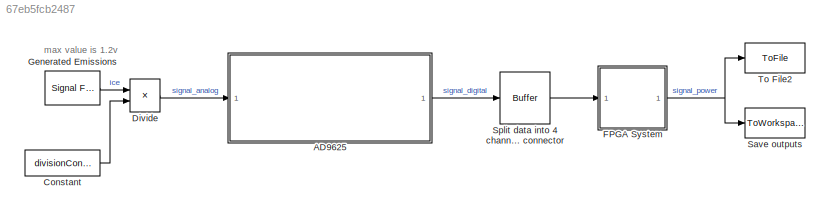
MODEL slx_67eb5fcb2487
KIND model
CONFIG AbsTol = auto
CONFIG EnableMultiTasking = on
CONFIG FixedStep = 1/2500e6
CONFIG MaxStep = auto
CONFIG MinStep = auto
CONFIG RelTol = 1e-3
CONFIG SampleTimeConstraint = Unconstrained
CONFIG Solver = FixedStepDiscrete
CONFIG SolverName = FixedStepDiscrete
CONFIG StartTime = 0.0
CONFIG StopTime = 0.00011
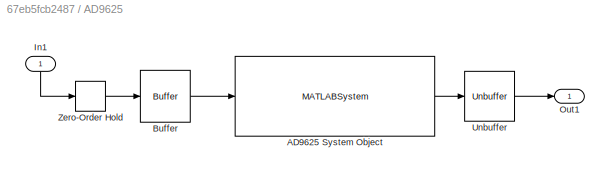
BLOCK [SubSystem] AD9625
  Ports = [1, 1]
  RequestExecContextInheritance = off
BLOCK [MATLABSystem] AD9625/AD9625 System Object
  Decimation = 8
  ExtJitter = 60e-15
  Fclk = ADC_Clock
  Gain = 0
  InputConfig = Absolute
  MaskDisplay = disp('AD9625');\nport_label('input',1,'in (V)');\nport_label('output',1,'out (Code)');
  MaskType = AD9625_sysobj
  Mode = ADC Only
  NcoFreq = 100e6
  Ports = [1, 1]
  SimulateUsing = Interpreted execution
  System = AD9625_sysobj
  Tessitura = 1e9
BLOCK [Buffer] AD9625/Buffer
BLOCK [Inport] AD9625/In1
  IconDisplay = Port number
BLOCK [Outport] AD9625/Out1
  IconDisplay = Port number
BLOCK [Unbuffer] AD9625/Unbuffer
  Ports = [1, 1]
BLOCK [ZeroOrderHold] AD9625/Zero-Order Hold
  SampleTime = 1/2500e6
BLOCK [Constant] Constant
  Value = divisionConst
BLOCK [Product] Divide
  InputSameDT = off
  Inputs = */
  OutDataTypeStr = Inherit: Inherit via internal rule
  Ports = [2, 1]
BLOCK [SubSystem] FPGA System
  Ports = [1, 1]
  ReferencedSubsystem = FPGA
  RequestExecContextInheritance = off
BLOCK [Reference] Generated Emissions  REF=dspsrcs4/Signal From
Workspace
  Ports = [0, 1]
  SourceBlock = dspsrcs4/Signal From\nWorkspace
  SourceProductBaseCode = DS
  SourceProductName = DSP System Toolbox
  SourceType = Signal From Workspace
BLOCK [ToWorkspace] Save outputs
  MaxDataPoints = inf
  Ports = [1]
  SampleTime = -1
  SaveFormat = Timeseries
  VariableName = simout
BLOCK [Buffer] Split data into 4 channels modelling FMC connector
  N = 4
  OutputFrames = off
BLOCK [ToFile] To File2
  Filename = Sig.mat
  Ports = [1]
  SaveFormat = Timeseries
ANNOTATION (root): max value is 1.2v
LINE AD9625/AD9625 System Object:1 -> AD9625/Unbuffer:1
LINE AD9625/Buffer:1 -> AD9625/AD9625 System Object:1
LINE AD9625/In1:1 -> AD9625/Zero-Order Hold:1
LINE AD9625/Unbuffer:1 -> AD9625/Out1:1
LINE AD9625/Zero-Order Hold:1 -> AD9625/Buffer:1
LINE AD9625:1 -> Split data into 4 channels modelling FMC connector:1
LINE Constant:1 -> Divide:2
LINE Divide:1 -> AD9625:1
NET FPGA System:1 -> Save outputs:1, To File2:1
LINE Generated Emissions:1 -> Divide:1
LINE Split data into 4 channels modelling FMC connector:1 -> FPGA System:1
note: NET lines group one-source signal fan-out (src -> all destinations, sorted); 1:1 wires keep LINE
